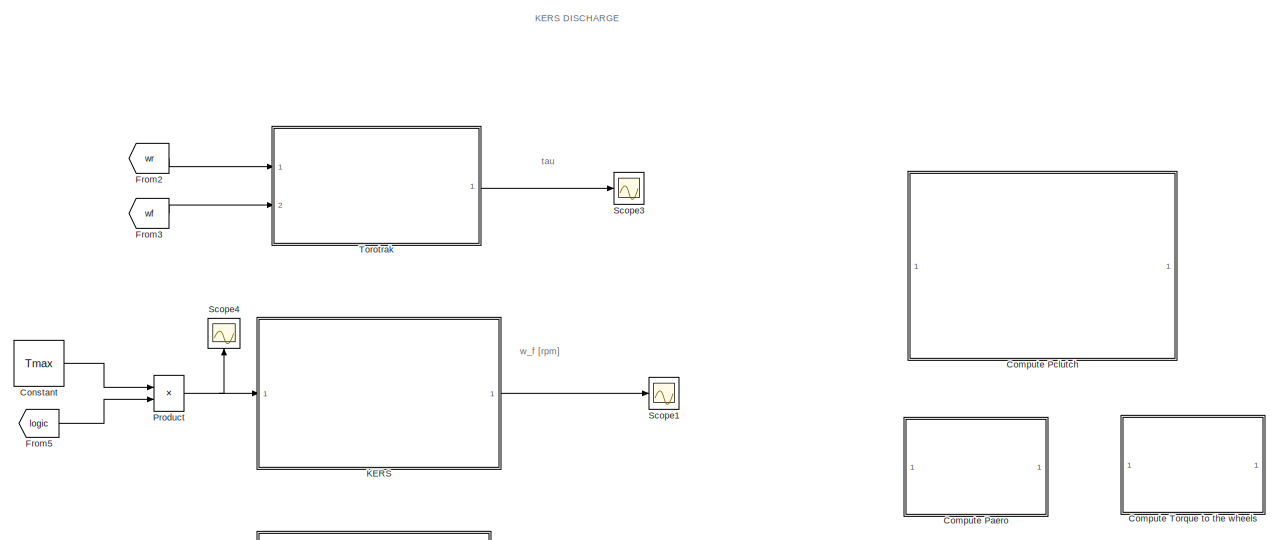
[diagram: root canvas - part 1/3, top right region]
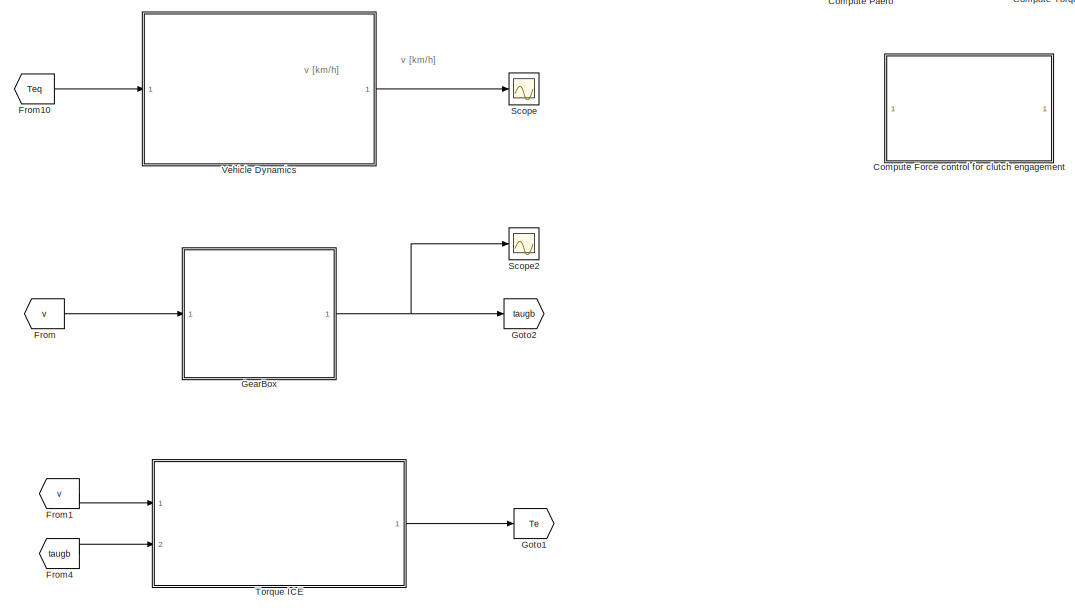
[diagram: root canvas - part 2/3, top right region]
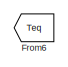
[diagram: root canvas - part 3/3, bottom left region]
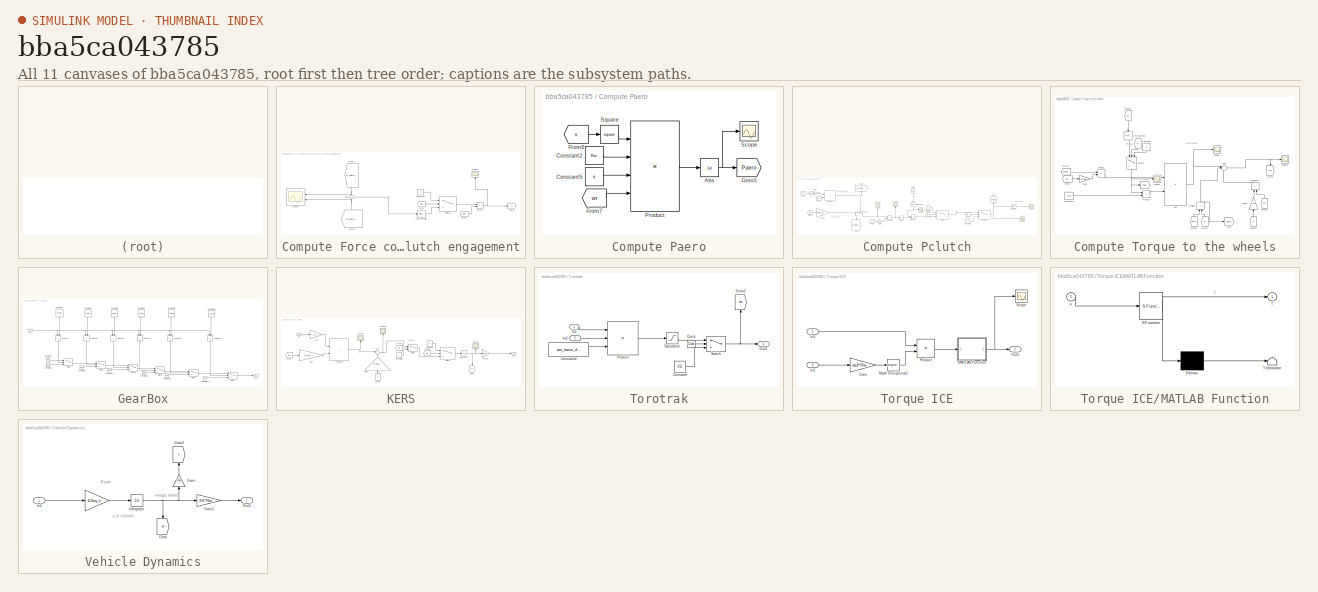
[diagram: thumbnail index - all 11 canvases of the model, root first then tree order]
MODEL slx_bba5ca043785
KIND model
CONFIG AbsTol = auto
CONFIG EnableMultiTasking = off
CONFIG FixedStep = 0.01
CONFIG MaxStep = auto
CONFIG MinStep = auto
CONFIG RelTol = 1e-3
CONFIG SampleTimeConstraint = Unconstrained
CONFIG Solver = ode4
CONFIG SolverName = ode4
CONFIG StartTime = 0.0
CONFIG StopTime = 50
BLOCK [SubSystem] Compute Force control for clutch engagement
  Ports = []
  RequestExecContextInheritance = off
BLOCK [Constant] Compute Force control for clutch engagement/Constant1
  SampleTime = -1
  Value = 0
BLOCK [From] Compute Force control for clutch engagement/From
  GotoTag = tau
  TagVisibility = global
BLOCK [From] Compute Force control for clutch engagement/From1
  GotoTag = w_clutch_kers
  NameLocation = left
  TagVisibility = global
BLOCK [From] Compute Force control for clutch engagement/From2
  GotoTag = logic
  TagVisibility = global
BLOCK [From] Compute Force control for clutch engagement/From5
  GotoTag = w_clutch_wheels
  NameLocation = right
  TagVisibility = global
BLOCK [Goto] Compute Force control for clutch engagement/Goto1
  GotoTag = u
  TagVisibility = global
BLOCK [Reference] Compute Force control for clutch engagement/PID Controller  REF=simulink/Continuous/PID Controller
  Ports = [1, 1]
  SourceBlock = simulink/Continuous/PID Controller
  SourceProductBaseCode = SL
  SourceType = PID 1dof
BLOCK [Product] Compute Force control for clutch engagement/Product
  Ports = [2, 1]
BLOCK [Scope] Compute Force control for clutch engagement/Scope2
  Floating = off
  NameLocation = right
  NumInputPorts = 1
  Ports = [1]
  ScopeSpecificationString = Simulink.scopes.TimeScopeBlockCfg('CurrentConfiguration', extmgr.ConfigurationSet(extmgr.Configuration('Core','General UI',true,'FigureColor',[1 1 1]),extmgr.Configuration('Core','Source UI',true),extmgr.Configuration('Sources','WiredSimulink',true,'DataLoggingVariableName','ScopeData1'),extmgr.Configuration('Visuals','Time Domain',true,'SerializedDisplays',{struct('MinYLimReal','-201.79438','MaxY...<+2513ch>
BLOCK [Scope] Compute Force control for clutch engagement/Scope4
  Floating = off
  NameLocation = top
  NumInputPorts = 2
  Ports = [2]
  ScopeSpecificationString = Simulink.scopes.TimeScopeBlockCfg('CurrentConfiguration', extmgr.ConfigurationSet(extmgr.Configuration('Core','General UI',true,'FigureColor',[1 1 1]),extmgr.Configuration('Core','Source UI',true),extmgr.Configuration('Sources','WiredSimulink',true,'DataLoggingVariableName','ScopeData2'),extmgr.Configuration('Visuals','Time Domain',true,'SerializedDisplays',{struct('MinYLimReal','553.79176','MaxYL...<+2590ch>
BLOCK [Sum] Compute Force control for clutch engagement/Sum
  Inputs = +-
  Ports = [2, 1]
BLOCK [Switch] Compute Force control for clutch engagement/Switch
  Criteria = u2 > Threshold
  InputSameDT = off
  SaturateOnIntegerOverflow = off
  Threshold = tau_min
BLOCK [SubSystem] Compute Paero
  Ports = []
  RequestExecContextInheritance = off
BLOCK [Abs] Compute Paero/Abs
  SaturateOnIntegerOverflow = off
  ZeroCross = off
BLOCK [Constant] Compute Paero/Constant2
  Value = Rw
BLOCK [Constant] Compute Paero/Constant5
  Value = d
BLOCK [From] Compute Paero/From6
  GotoTag = v
  TagVisibility = global
BLOCK [From] Compute Paero/From7
  GotoTag = wr
  TagVisibility = global
BLOCK [Goto] Compute Paero/Goto3
  GotoTag = Paero
  TagVisibility = global
BLOCK [Product] Compute Paero/Product
  Inputs = 4
  Ports = [4, 1]
BLOCK [Scope] Compute Paero/Scope
  Floating = off
  NumInputPorts = 1
  Ports = [1]
  ScopeSpecificationString = Simulink.scopes.TimeScopeBlockCfg('CurrentConfiguration', extmgr.ConfigurationSet(extmgr.Configuration('Core','General UI',true),extmgr.Configuration('Core','Source UI',true),extmgr.Configuration('Sources','WiredSimulink',true,'DataLoggingVariableName','ScopeData4'),extmgr.Configuration('Visuals','Time Domain',true,'SerializedDisplays',{struct('MinYLimReal','-66394.31207','MaxYLimReal','597548.808...<+1423ch>
BLOCK [Math] Compute Paero/Square
  Operator = square
  Ports = [1, 1]
  SignedPower = on
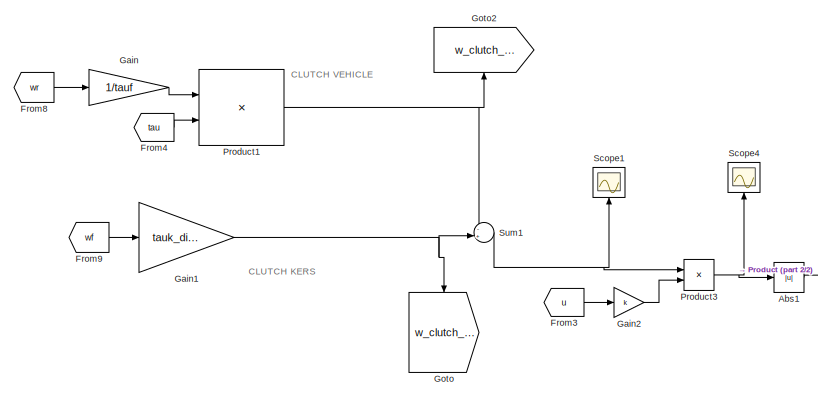
[diagram: Compute Pclutch - part 1/2, left side, full height]
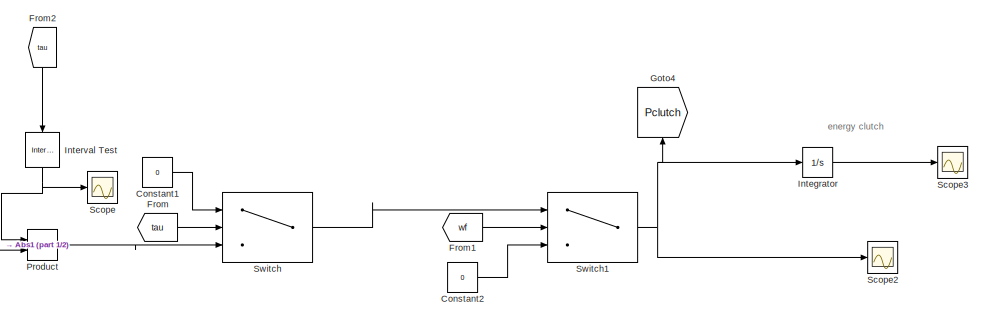
[diagram: Compute Pclutch - part 2/2, right side, full height]
BLOCK [SubSystem] Compute Pclutch
  Ports = []
  RequestExecContextInheritance = off
BLOCK [Abs] Compute Pclutch/Abs1
  SaturateOnIntegerOverflow = off
  ZeroCross = off
BLOCK [Constant] Compute Pclutch/Constant1
  Value = 0
BLOCK [Constant] Compute Pclutch/Constant2
  Value = 0
BLOCK [From] Compute Pclutch/From
  GotoTag = tau
  TagVisibility = global
BLOCK [From] Compute Pclutch/From1
  GotoTag = wf
  TagVisibility = global
BLOCK [From] Compute Pclutch/From2
  GotoTag = tau
  NameLocation = left
  TagVisibility = global
BLOCK [From] Compute Pclutch/From3
  GotoTag = u
  TagVisibility = global
BLOCK [From] Compute Pclutch/From4
  GotoTag = tau
  TagVisibility = global
BLOCK [From] Compute Pclutch/From8
  GotoTag = wr
  TagVisibility = global
BLOCK [From] Compute Pclutch/From9
  GotoTag = wf
  TagVisibility = global
BLOCK [Gain] Compute Pclutch/Gain
  Gain = 1/tauf
BLOCK [Gain] Compute Pclutch/Gain1
  Gain = tauk_discharge
BLOCK [Gain] Compute Pclutch/Gain2
  Gain = k
BLOCK [Goto] Compute Pclutch/Goto
  GotoTag = w_clutch_kers
  NameLocation = left
  TagVisibility = global
BLOCK [Goto] Compute Pclutch/Goto2
  GotoTag = w_clutch_wheels
  NameLocation = right
  TagVisibility = global
BLOCK [Goto] Compute Pclutch/Goto4
  GotoTag = Pclutch
  NameLocation = right
  TagVisibility = global
BLOCK [Integrator] Compute Pclutch/Integrator
  Ports = [1, 1]
BLOCK [Reference] Compute Pclutch/Interval Test  REF=simulink/Logic and Bit
Operations/Interval Test
  NameLocation = left
  Ports = [1, 1]
  SourceBlock = simulink/Logic and Bit\nOperations/Interval Test
  SourceProductBaseCode = SL
  SourceType = Interval Test
BLOCK [Product] Compute Pclutch/Product
  Ports = [2, 1]
BLOCK [Product] Compute Pclutch/Product1
  Inputs = */
  Ports = [2, 1]
BLOCK [Product] Compute Pclutch/Product3
  Ports = [2, 1]
BLOCK [Scope] Compute Pclutch/Scope
  Floating = off
  NumInputPorts = 1
  Ports = [1]
  ScopeSpecificationString = Simulink.scopes.TimeScopeBlockCfg('CurrentConfiguration', extmgr.ConfigurationSet(extmgr.Configuration('Core','General UI',true,'FigureColor',[1 1 1]),extmgr.Configuration('Core','Source UI',true),extmgr.Configuration('Sources','WiredSimulink',true,'DataLoggingVariableName','ScopeData6'),extmgr.Configuration('Visuals','Time Domain',true,'SerializedDisplays',{struct('MinYLimReal','-0.125','MaxYLimR...<+2406ch>
BLOCK [Scope] Compute Pclutch/Scope1
  Floating = off
  NameLocation = right
  NumInputPorts = 1
  Ports = [1]
  ScopeSpecificationString = Simulink.scopes.TimeScopeBlockCfg('CurrentConfiguration', extmgr.ConfigurationSet(extmgr.Configuration('Core','General UI',true),extmgr.Configuration('Core','Source UI',true),extmgr.Configuration('Sources','WiredSimulink',true,'DataLoggingVariableName','ScopeData5'),extmgr.Configuration('Visuals','Time Domain',true,'SerializedDisplays',{struct('MinYLimReal','-129758.73369','MaxYLimReal','15043.000...<+1470ch>
BLOCK [Scope] Compute Pclutch/Scope2
  Floating = off
  NumInputPorts = 1
  Ports = [1]
  ScopeSpecificationString = Simulink.scopes.TimeScopeBlockCfg('CurrentConfiguration', extmgr.ConfigurationSet(extmgr.Configuration('Core','General UI',true),extmgr.Configuration('Core','Source UI',true),extmgr.Configuration('Sources','WiredSimulink',true,'DataLoggingVariableName','ScopeData3'),extmgr.Configuration('Visuals','Time Domain',true,'SerializedDisplays',{struct('MinYLimReal','-8280.13115','MaxYLimReal','74521.18038...<+1463ch>
BLOCK [Scope] Compute Pclutch/Scope3
  Floating = off
  NumInputPorts = 1
  Ports = [1]
  ScopeSpecificationString = Simulink.scopes.TimeScopeBlockCfg('CurrentConfiguration', extmgr.ConfigurationSet(extmgr.Configuration('Core','General UI',true),extmgr.Configuration('Core','Source UI',true),extmgr.Configuration('Sources','WiredSimulink',true,'DataLoggingVariableName','ScopeData6'),extmgr.Configuration('Visuals','Time Domain',true,'SerializedDisplays',{struct('MinYLimReal','-17847.16977','MaxYLimReal','160624.527...<+1430ch>
BLOCK [Scope] Compute Pclutch/Scope4
  Floating = off
  NameLocation = right
  NumInputPorts = 1
  Ports = [1]
  ScopeSpecificationString = Simulink.scopes.TimeScopeBlockCfg('CurrentConfiguration', extmgr.ConfigurationSet(extmgr.Configuration('Core','General UI',true),extmgr.Configuration('Core','Source UI',true),extmgr.Configuration('Sources','WiredSimulink',true,'DataLoggingVariableName','ScopeData7'),extmgr.Configuration('Visuals','Time Domain',true,'SerializedDisplays',{struct('MinYLimReal','-2389313.02554','MaxYLimReal','2473514....<+1484ch>
BLOCK [Sum] Compute Pclutch/Sum1
  Inputs = -+
  Ports = [2, 1]
BLOCK [Switch] Compute Pclutch/Switch
  InputSameDT = off
  SaturateOnIntegerOverflow = off
  Threshold = tau_max
  ZeroCross = off
BLOCK [Switch] Compute Pclutch/Switch1
  Criteria = u2 > Threshold
  InputSameDT = off
  SaturateOnIntegerOverflow = off
  ZeroCross = off
BLOCK [SubSystem] Compute Torque to the wheels
  Ports = []
  RequestExecContextInheritance = off
BLOCK [Sum] Compute Torque to the wheels/Add
  IconShape = rectangular
  Ports = [2, 1]
BLOCK [Constant] Compute Torque to the wheels/Constant
  NameLocation = left
  SampleTime = -1
  Value = 0
BLOCK [Constant] Compute Torque to the wheels/Constant6
  Value = Tmax
BLOCK [Product] Compute Torque to the wheels/Divide
  Inputs = */
  NameLocation = right
  Ports = [2, 1]
BLOCK [Product] Compute Torque to the wheels/Divide1
  Inputs = /*
  Ports = [2, 1]
BLOCK [From] Compute Torque to the wheels/From
  GotoTag = Te
  TagVisibility = global
BLOCK [From] Compute Torque to the wheels/From1
  GotoTag = tau
  NameLocation = left
  TagVisibility = global
BLOCK [From] Compute Torque to the wheels/From2
  GotoTag = taugb
  TagVisibility = global
BLOCK [From] Compute Torque to the wheels/From3
  GotoTag = wf
  NameLocation = left
  TagVisibility = global
BLOCK [From] Compute Torque to the wheels/From4
  GotoTag = u
  NameLocation = right
  TagVisibility = global
BLOCK [From] Compute Torque to the wheels/From5
  GotoTag = tau
  NameLocation = right
  TagVisibility = global
BLOCK [From] Compute Torque to the wheels/From8
  GotoTag = Paero
  NameLocation = right
  TagVisibility = global
BLOCK [From] Compute Torque to the wheels/From9
  GotoTag = wr
  NameLocation = right
  TagVisibility = global
BLOCK [Gain] Compute Torque to the wheels/Gain
  Gain = 1/tauf
BLOCK [Gain] Compute Torque to the wheels/Gain1
  Gain = k/tauf
  NameLocation = right
BLOCK [Goto] Compute Torque to the wheels/Goto
  GotoTag = Taero
  TagVisibility = global
BLOCK [Goto] Compute Torque to the wheels/Goto1
  GotoTag = logic
  TagVisibility = global
BLOCK [Goto] Compute Torque to the wheels/Goto4
  GotoTag = Teq
  NameLocation = left
  TagVisibility = global
BLOCK [Reference] Compute Torque to the wheels/Interval Test  REF=simulink/Logic and Bit
Operations/Interval Test
  NameLocation = left
  Ports = [1, 1]
  SourceBlock = simulink/Logic and Bit\nOperations/Interval Test
  SourceProductBaseCode = SL
  SourceType = Interval Test
BLOCK [Product] Compute Torque to the wheels/Product
  Ports = [2, 1]
BLOCK [Product] Compute Torque to the wheels/Product1
  Inputs = */
  NameLocation = right
  Ports = [2, 1]
BLOCK [Scope] Compute Torque to the wheels/Scope
  Floating = off
  NumInputPorts = 1
  Ports = [1]
  ScopeSpecificationString = Simulink.scopes.TimeScopeBlockCfg('CurrentConfiguration', extmgr.ConfigurationSet(extmgr.Configuration('Core','General UI',true,'FigureColor',[1 1 1]),extmgr.Configuration('Core','Source UI',true),extmgr.Configuration('Sources','WiredSimulink',true,'DataLoggingVariableName','ScopeData2'),extmgr.Configuration('Visuals','Time Domain',true,'SerializedDisplays',{struct('MinYLimReal','-30.00000','MaxYL...<+2464ch>
BLOCK [Scope] Compute Torque to the wheels/Scope1
  Floating = off
  NumInputPorts = 1
  Ports = [1]
  ScopeSpecificationString = Simulink.scopes.TimeScopeBlockCfg('CurrentConfiguration', extmgr.ConfigurationSet(extmgr.Configuration('Core','General UI',true,'FigureColor',[1 1 1]),extmgr.Configuration('Core','Source UI',true),extmgr.Configuration('Sources','WiredSimulink',true,'DataLoggingVariableName','ScopeData4'),extmgr.Configuration('Visuals','Time Domain',true,'SerializedDisplays',{struct('MinYLimReal','-0.125','MaxYLimR...<+2398ch>
BLOCK [Scope] Compute Torque to the wheels/Scope2
  Floating = off
  NumInputPorts = 1
  Ports = [1]
  ScopeSpecificationString = Simulink.scopes.TimeScopeBlockCfg('CurrentConfiguration', extmgr.ConfigurationSet(extmgr.Configuration('Core','General UI',true),extmgr.Configuration('Core','Source UI',true),extmgr.Configuration('Sources','WiredSimulink',true,'DataLoggingVariableName','ScopeData2'),extmgr.Configuration('Visuals','Time Domain',true,'SerializedDisplays',{struct('MinYLimReal','-462.61356','MaxYLimReal','3595.96418',...<+1479ch>
BLOCK [Sum] Compute Torque to the wheels/Sum
  Inputs = |+-+
  Ports = [3, 1]
BLOCK [Switch] Compute Torque to the wheels/Switch
  Criteria = u2 > Threshold
  InputSameDT = off
  NameLocation = left
  SaturateOnIntegerOverflow = off
  Threshold = 0.3*wf_max
BLOCK [Constant] Constant
  SampleTime = -1
  Value = Tmax
BLOCK [From] From
  GotoTag = v
  TagVisibility = global
BLOCK [From] From1
  GotoTag = v
  TagVisibility = global
BLOCK [From] From10
  GotoTag = Teq
  TagVisibility = global
BLOCK [From] From2
  GotoTag = wr
  TagVisibility = global
BLOCK [From] From3
  GotoTag = wf
  TagVisibility = global
BLOCK [From] From4
  GotoTag = taugb
  TagVisibility = global
BLOCK [From] From5
  GotoTag = logic
  TagVisibility = global
BLOCK [From] From6
  Commented = on
  GotoTag = Teq
  TagVisibility = global
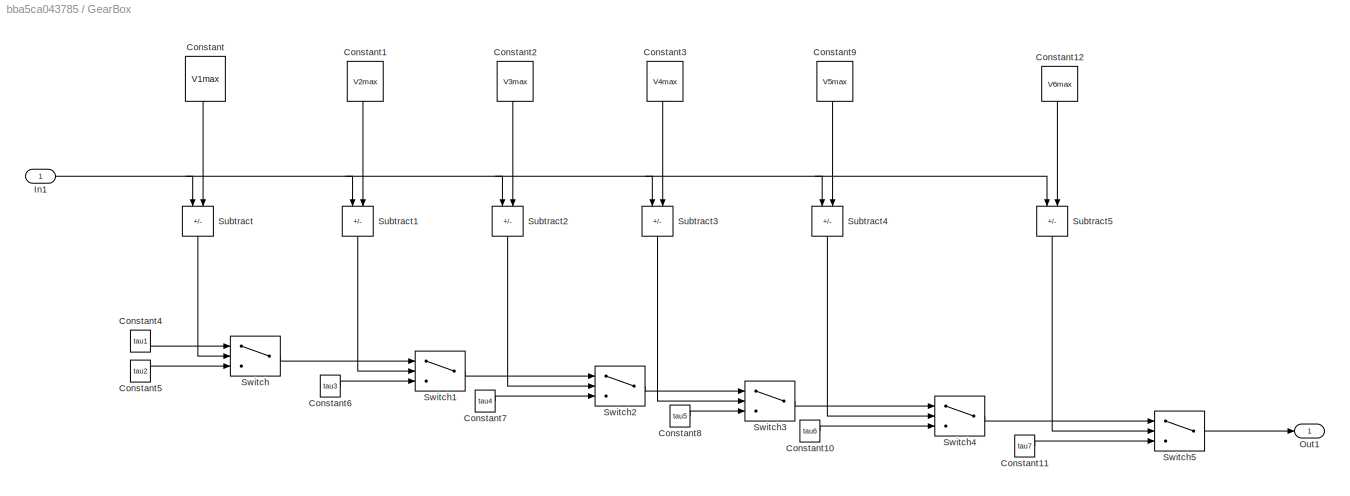
BLOCK [SubSystem] GearBox
  Ports = [1, 1]
  RequestExecContextInheritance = off
BLOCK [Constant] GearBox/Constant
  NameLocation = left
  Value = V1max
BLOCK [Constant] GearBox/Constant1
  NameLocation = left
  Value = V2max
BLOCK [Constant] GearBox/Constant10
  Value = tau6
BLOCK [Constant] GearBox/Constant11
  Value = tau7
BLOCK [Constant] GearBox/Constant12
  NameLocation = left
  Value = V6max
BLOCK [Constant] GearBox/Constant2
  NameLocation = left
  Value = V3max
BLOCK [Constant] GearBox/Constant3
  NameLocation = left
  Value = V4max
BLOCK [Constant] GearBox/Constant4
  Value = tau1
BLOCK [Constant] GearBox/Constant5
  Value = tau2
BLOCK [Constant] GearBox/Constant6
  Value = tau3
BLOCK [Constant] GearBox/Constant7
  Value = tau4
BLOCK [Constant] GearBox/Constant8
  Value = tau5
BLOCK [Constant] GearBox/Constant9
  NameLocation = left
  Value = V5max
BLOCK [Inport] GearBox/In1
BLOCK [Outport] GearBox/Out1
  VectorParamsAs1DForOutWhenUnconnected = off
BLOCK [Sum] GearBox/Subtract
  IconShape = rectangular
  Inputs = -+
  NameLocation = left
  Ports = [2, 1]
BLOCK [Sum] GearBox/Subtract1
  IconShape = rectangular
  Inputs = -+
  NameLocation = left
  Ports = [2, 1]
BLOCK [Sum] GearBox/Subtract2
  IconShape = rectangular
  Inputs = -+
  NameLocation = left
  Ports = [2, 1]
BLOCK [Sum] GearBox/Subtract3
  IconShape = rectangular
  Inputs = -+
  NameLocation = left
  Ports = [2, 1]
BLOCK [Sum] GearBox/Subtract4
  IconShape = rectangular
  Inputs = -+
  NameLocation = left
  Ports = [2, 1]
BLOCK [Sum] GearBox/Subtract5
  IconShape = rectangular
  Inputs = -+
  NameLocation = left
  Ports = [2, 1]
BLOCK [Switch] GearBox/Switch
  Criteria = u2 > Threshold
  InputSameDT = off
  SaturateOnIntegerOverflow = off
BLOCK [Switch] GearBox/Switch1
  Criteria = u2 > Threshold
  InputSameDT = off
  SaturateOnIntegerOverflow = off
BLOCK [Switch] GearBox/Switch2
  Criteria = u2 > Threshold
  InputSameDT = off
  SaturateOnIntegerOverflow = off
BLOCK [Switch] GearBox/Switch3
  Criteria = u2 > Threshold
  InputSameDT = off
  SaturateOnIntegerOverflow = off
BLOCK [Switch] GearBox/Switch4
  Criteria = u2 > Threshold
  InputSameDT = off
  SaturateOnIntegerOverflow = off
BLOCK [Switch] GearBox/Switch5
  Criteria = u2 > Threshold
  InputSameDT = off
  SaturateOnIntegerOverflow = off
BLOCK [Goto] Goto1
  GotoTag = Te
  TagVisibility = global
BLOCK [Goto] Goto2
  GotoTag = taugb
  TagVisibility = global
BLOCK [SubSystem] KERS
  Ports = [1, 1]
  RequestExecContextInheritance = off
BLOCK [Gain] KERS/-1//Jf
  Gain = -1/Jf
BLOCK [Constant] KERS/Constant3
  Value = 0
BLOCK [Constant] KERS/Constant4
  Value = 0
BLOCK [From] KERS/From
  GotoTag = tau
  TagVisibility = global
BLOCK [From] KERS/From1
  GotoTag = u
  NameLocation = right
  TagVisibility = global
BLOCK [From] KERS/From4
  GotoTag = wf
  TagVisibility = global
BLOCK [From] KERS/From5
  GotoTag = tau
  TagVisibility = global
BLOCK [Gain] KERS/Gain
  Gain = 1/tau_trasm_discharge
BLOCK [Gain] KERS/Gain1
  Gain = k*tauk_discharge/Jf
  NameLocation = right
BLOCK [Goto] KERS/Goto1
  GotoTag = wf
  NameLocation = left
  TagVisibility = global
BLOCK [Inport] KERS/In1
BLOCK [Integrator] KERS/Integrator1
  ContinuousStateAttributes = "omega_f"
  InitialCondition = wf_max
  Ports = [1, 1]
BLOCK [Outport] KERS/Out1
BLOCK [Product] KERS/Product1
  Inputs = **
  Ports = [2, 1]
BLOCK [Scope] KERS/Scope
  Floating = off
  NameLocation = right
  NumInputPorts = 1
  Ports = [1]
  ScopeSpecificationString = Simulink.scopes.TimeScopeBlockCfg('CurrentConfiguration', extmgr.ConfigurationSet(extmgr.Configuration('Core','General UI',true),extmgr.Configuration('Core','Source UI',true),extmgr.Configuration('Sources','WiredSimulink',true,'DataLoggingVariableName','ScopeData1'),extmgr.Configuration('Visuals','Time Domain',true,'SerializedDisplays',{struct('MinYLimReal','5506.22632','MaxYLimReal','6892.56008',...<+1463ch>
BLOCK [Scope] KERS/Scope3
  Floating = off
  NameLocation = right
  NumInputPorts = 1
  Ports = [1]
  ScopeSpecificationString = Simulink.scopes.TimeScopeBlockCfg('CurrentConfiguration', extmgr.ConfigurationSet(extmgr.Configuration('Core','General UI',true,'FigureColor',[1 1 1]),extmgr.Configuration('Core','Source UI',true),extmgr.Configuration('Sources','WiredSimulink',true,'DataLoggingVariableName','ScopeData2'),extmgr.Configuration('Visuals','Time Domain',true,'SerializedDisplays',{struct('MinYLimReal','-1333.9655','MaxY...<+2422ch>
BLOCK [Scope] KERS/Scope4
  Floating = off
  NameLocation = right
  NumInputPorts = 1
  Ports = [1]
  ScopeSpecificationString = Simulink.scopes.TimeScopeBlockCfg('CurrentConfiguration', extmgr.ConfigurationSet(extmgr.Configuration('Core','General UI',true,'FigureColor',[1 1 1]),extmgr.Configuration('Core','Source UI',true),extmgr.Configuration('Sources','WiredSimulink',true,'DataLoggingVariableName','ScopeData3'),extmgr.Configuration('Visuals','Time Domain',true,'SerializedDisplays',{struct('MinYLimReal','-1333.9655','MaxY...<+2429ch>
BLOCK [Sum] KERS/Sum
  Inputs = |+-
  Ports = [2, 1]
BLOCK [Switch] KERS/Switch
  Criteria = u2 > Threshold
  InputSameDT = off
  SaturateOnIntegerOverflow = off
  Threshold = 0.3*wf_max
BLOCK [Switch] KERS/Switch1
  InputSameDT = off
  SaturateOnIntegerOverflow = off
  Threshold = tau_max
BLOCK [Gain] KERS/To rpm
  Gain = 9.55
BLOCK [Product] Product
  Ports = [2, 1]
BLOCK [Scope] Scope
  Floating = off
  NumInputPorts = 1
  Ports = [1]
  ScopeSpecificationString = Simulink.scopes.TimeScopeBlockCfg('CurrentConfiguration', extmgr.ConfigurationSet(extmgr.Configuration('Core','General UI',true,'FigureColor',[1 1 1]),extmgr.Configuration('Core','Source UI',true),extmgr.Configuration('Sources','WiredSimulink',true),extmgr.Configuration('Visuals','Time Domain',true,'SerializedDisplays',{struct('MinYLimReal','-41.20695','MaxYLimReal','370.86254','YLabelReal','v [km...<+1638ch>
BLOCK [Scope] Scope1
  Floating = off
  NumInputPorts = 1
  Ports = [1]
  ScopeSpecificationString = Simulink.scopes.TimeScopeBlockCfg('CurrentConfiguration', extmgr.ConfigurationSet(extmgr.Configuration('Core','General UI',true,'FigureColor',[1 1 1]),extmgr.Configuration('Core','Source UI',true),extmgr.Configuration('Sources','WiredSimulink',true,'DataLoggingVariableName','ScopeData1'),extmgr.Configuration('Visuals','Time Domain',true,'SerializedDisplays',{struct('MinYLimReal','12303.70244','Max...<+1762ch>
BLOCK [Scope] Scope2
  Floating = off
  NumInputPorts = 1
  Ports = [1]
  ScopeSpecificationString = Simulink.scopes.TimeScopeBlockCfg('CurrentConfiguration', extmgr.ConfigurationSet(extmgr.Configuration('Core','General UI',true,'FigureColor',[1 1 1]),extmgr.Configuration('Core','Source UI',true),extmgr.Configuration('Sources','WiredSimulink',true,'DataLoggingVariableName','ScopeData2'),extmgr.Configuration('Visuals','Time Domain',true,'SerializedDisplays',{struct('MinYLimReal','0.1841','MaxYLimR...<+1673ch>
BLOCK [Scope] Scope3
  Floating = off
  NumInputPorts = 1
  Ports = [1]
  ScopeSpecificationString = Simulink.scopes.TimeScopeBlockCfg('CurrentConfiguration', extmgr.ConfigurationSet(extmgr.Configuration('Core','General UI',true,'FigureColor',[1 1 1]),extmgr.Configuration('Core','Source UI',true),extmgr.Configuration('Sources','WiredSimulink',true,'DataLoggingVariableName','ScopeData1'),extmgr.Configuration('Visuals','Time Domain',true,'SerializedDisplays',{struct('MinYLimReal','-0.07202','MaxYLi...<+1673ch>
BLOCK [Scope] Scope4
  Floating = off
  NameLocation = right
  NumInputPorts = 1
  Ports = [1]
  ScopeSpecificationString = Simulink.scopes.TimeScopeBlockCfg('CurrentConfiguration', extmgr.ConfigurationSet(extmgr.Configuration('Core','General UI',true,'FigureColor',[1 1 1]),extmgr.Configuration('Core','Source UI',true),extmgr.Configuration('Sources','WiredSimulink',true,'DataLoggingVariableName','ScopeData5'),extmgr.Configuration('Visuals','Time Domain',true,'SerializedDisplays',{struct('MinYLimReal','-30.00000','MaxYL...<+2422ch>
BLOCK [SubSystem] Torotrak
  Ports = [2, 1]
  RequestExecContextInheritance = off
BLOCK [Clock] Torotrak/Clock
BLOCK [Constant] Torotrak/Constant
  SampleTime = -1
  Value = 0.01
BLOCK [Constant] Torotrak/Constant2
  Value = tau_trasm_discharge
BLOCK [Goto] Torotrak/Goto2
  GotoTag = tau
  NameLocation = right
  TagVisibility = global
BLOCK [Inport] Torotrak/In1
BLOCK [Inport] Torotrak/In2
  Port = 2
BLOCK [Outport] Torotrak/Out1
BLOCK [Product] Torotrak/Product
  Inputs = */*
  Ports = [3, 1]
BLOCK [Saturate] Torotrak/Saturation
  LowerLimit = tau_min
  UpperLimit = tau_max
  ZeroCross = off
BLOCK [Switch] Torotrak/Switch
  Criteria = u2 > Threshold
  InputSameDT = off
  SaturateOnIntegerOverflow = off
  Threshold = 30
  ZeroCross = off
BLOCK [SubSystem] Torque ICE
  Ports = [2, 1]
  RequestExecContextInheritance = off
BLOCK [Gain] Torque ICE/Gain
  Gain = tauf*Rw
BLOCK [Inport] Torque ICE/In1
BLOCK [Inport] Torque ICE/In2
  Port = 2
BLOCK [SubSystem] Torque ICE/MATLAB Function
  ErrorFcn = Stateflow.Translate.translate
  PermitHierarchicalResolution = ExplicitOnly
  Ports = [1, 1]
  RequestExecContextInheritance = off
  SFBlockType = MATLAB Function
  TreatAsAtomicUnit = on
BLOCK [Demux] Torque ICE/MATLAB Function/ Demux 
  Outputs = 1
  Ports = [1, 1]
BLOCK [S-Function] Torque ICE/MATLAB Function/ SFunction 
  EnableBusSupport = on
  FunctionName = sf_sfun
  PortCounts = [1 2]
  Ports = [1, 2]
  SFcnIsStateOwnerBlock = off
  SFunctionDeploymentMode = off
  Tag = Stateflow S-Function 1
BLOCK [Terminator] Torque ICE/MATLAB Function/ Terminator 
BLOCK [Outport] Torque ICE/MATLAB Function/T
  VectorParamsAs1DForOutWhenUnconnected = off
BLOCK [Inport] Torque ICE/MATLAB Function/u
BLOCK [Math] Torque ICE/Math Reciprocal1
  Operator = reciprocal
  Ports = [1, 1]
  SignedPower = on
BLOCK [Outport] Torque ICE/Out1
  VectorParamsAs1DForOutWhenUnconnected = off
BLOCK [Product] Torque ICE/Product
  Ports = [2, 1]
BLOCK [Scope] Torque ICE/Scope
  Floating = off
  NumInputPorts = 1
  Ports = [1]
  ScopeSpecificationString = Simulink.scopes.TimeScopeBlockCfg('CurrentConfiguration', extmgr.ConfigurationSet(extmgr.Configuration('Core','General UI',true),extmgr.Configuration('Core','Source UI',true),extmgr.Configuration('Sources','WiredSimulink',true,'DataLoggingVariableName','ScopeData1'),extmgr.Configuration('Visuals','Time Domain',true,'SerializedDisplays',{struct('MinYLimReal','14.16448','MaxYLimReal','757.31984','YL...<+1384ch>
BLOCK [SubSystem] Vehicle Dynamics
  Ports = [1, 1]
  RequestExecContextInheritance = off
BLOCK [Gain] Vehicle Dynamics/ 
  Gain = 1/Jeq_v
BLOCK [Gain] Vehicle Dynamics/Gain
  Gain = Rw
  NameLocation = right
BLOCK [Gain] Vehicle Dynamics/Gain1
  Gain = 3.6*Rw
BLOCK [Goto] Vehicle Dynamics/Goto
  GotoTag = wr
  NameLocation = left
  TagVisibility = global
BLOCK [Goto] Vehicle Dynamics/Goto2
  GotoTag = v
  NameLocation = right
  TagVisibility = global
BLOCK [Inport] Vehicle Dynamics/In1
BLOCK [Integrator] Vehicle Dynamics/Integrator
  ContinuousStateAttributes = "omega_w"
  InitialCondition = 0.0000001/(3.6*Rw)
  NameLocation = top
  Ports = [1, 1]
BLOCK [Outport] Vehicle Dynamics/Out1
ANNOTATION (root): KERS DISCHARGE
ANNOTATION (root): tau
ANNOTATION (root): v [km/h]
ANNOTATION (root): w_f [rpm]
ANNOTATION Compute Pclutch: CLUTCH KERS
ANNOTATION Compute Pclutch: CLUTCH VEHICLE
ANNOTATION Compute Pclutch: energy clutch
ANNOTATION Compute Torque to the wheels: total torque
ANNOTATION KERS: Flywheel
ANNOTATION Vehicle Dynamics: v_0 = 0 km/h
ANNOTATION Vehicle Dynamics: Ruote
ANNOTATION Vehicle Dynamics: omega_wheel
LINE Compute Force control for clutch engagement/Constant1:1 -> Compute Force control for clutch engagement/Switch:1
NET Compute Force control for clutch engagement/From1:1 -> Compute Force control for clutch engagement/Scope4:1, Compute Force control for clutch engagement/Sum:1
LINE Compute Force control for clutch engagement/From2:1 -> Compute Force control for clutch engagement/Product:2
NET Compute Force control for clutch engagement/From5:1 -> Compute Force control for clutch engagement/Scope4:2, Compute Force control for clutch engagement/Sum:2
LINE Compute Force control for clutch engagement/From:1 -> Compute Force control for clutch engagement/Switch:2
LINE Compute Force control for clutch engagement/PID Controller:1 -> Compute Force control for clutch engagement/Switch:3
NET Compute Force control for clutch engagement/Product:1 -> Compute Force control for clutch engagement/Goto1:1, Compute Force control for clutch engagement/Scope2:1
LINE Compute Force control for clutch engagement/Sum:1 -> Compute Force control for clutch engagement/PID Controller:1
LINE Compute Force control for clutch engagement/Switch:1 -> Compute Force control for clutch engagement/Product:1
NET Compute Paero/Abs:1 -> Compute Paero/Goto3:1, Compute Paero/Scope:1
LINE Compute Paero/Constant2:1 -> Compute Paero/Product:2
LINE Compute Paero/Constant5:1 -> Compute Paero/Product:3
LINE Compute Paero/From6:1 -> Compute Paero/Square:1
LINE Compute Paero/From7:1 -> Compute Paero/Product:4
LINE Compute Paero/Product:1 -> Compute Paero/Abs:1
LINE Compute Paero/Square:1 -> Compute Paero/Product:1
LINE Compute Pclutch/Abs1:1 -> Compute Pclutch/Product:2
LINE Compute Pclutch/Constant1:1 -> Compute Pclutch/Switch:1
LINE Compute Pclutch/Constant2:1 -> Compute Pclutch/Switch1:3
LINE Compute Pclutch/From1:1 -> Compute Pclutch/Switch1:2
LINE Compute Pclutch/From2:1 -> Compute Pclutch/Interval Test:1
LINE Compute Pclutch/From3:1 -> Compute Pclutch/Gain2:1
LINE Compute Pclutch/From4:1 -> Compute Pclutch/Product1:2
LINE Compute Pclutch/From8:1 -> Compute Pclutch/Gain:1
LINE Compute Pclutch/From9:1 -> Compute Pclutch/Gain1:1
LINE Compute Pclutch/From:1 -> Compute Pclutch/Switch:2
NET Compute Pclutch/Gain1:1 -> Compute Pclutch/Goto:1, Compute Pclutch/Sum1:2
LINE Compute Pclutch/Gain2:1 -> Compute Pclutch/Product3:2
LINE Compute Pclutch/Gain:1 -> Compute Pclutch/Product1:1
LINE Compute Pclutch/Integrator:1 -> Compute Pclutch/Scope3:1
NET Compute Pclutch/Interval Test:1 -> Compute Pclutch/Product:1, Compute Pclutch/Scope:1
NET Compute Pclutch/Product1:1 -> Compute Pclutch/Goto2:1, Compute Pclutch/Sum1:1
NET Compute Pclutch/Product3:1 -> Compute Pclutch/Abs1:1, Compute Pclutch/Scope4:1
LINE Compute Pclutch/Product:1 -> Compute Pclutch/Switch:3
NET Compute Pclutch/Sum1:1 -> Compute Pclutch/Product3:1, Compute Pclutch/Scope1:1
NET Compute Pclutch/Switch1:1 -> Compute Pclutch/Goto4:1, Compute Pclutch/Integrator:1, Compute Pclutch/Scope2:1
LINE Compute Pclutch/Switch:1 -> Compute Pclutch/Switch1:1
NET Compute Torque to the wheels/Add:1 -> Compute Torque to the wheels/Scope:1, Compute Torque to the wheels/Sum:1
LINE Compute Torque to the wheels/Constant6:1 -> Compute Torque to the wheels/Product:2
LINE Compute Torque to the wheels/Constant:1 -> Compute Torque to the wheels/Switch:3
LINE Compute Torque to the wheels/Divide1:1 -> Compute Torque to the wheels/Add:1
NET Compute Torque to the wheels/Divide:1 -> Compute Torque to the wheels/Goto:1, Compute Torque to the wheels/Sum:2
LINE Compute Torque to the wheels/From1:1 -> Compute Torque to the wheels/Interval Test:1
LINE Compute Torque to the wheels/From2:1 -> Compute Torque to the wheels/Divide1:1
LINE Compute Torque to the wheels/From3:1 -> Compute Torque to the wheels/Switch:2
LINE Compute Torque to the wheels/From4:1 -> Compute Torque to the wheels/Gain1:1
LINE Compute Torque to the wheels/From5:1 -> Compute Torque to the wheels/Product1:2
LINE Compute Torque to the wheels/From8:1 -> Compute Torque to the wheels/Divide:1
LINE Compute Torque to the wheels/From9:1 -> Compute Torque to the wheels/Divide:2
LINE Compute Torque to the wheels/From:1 -> Compute Torque to the wheels/Gain:1
LINE Compute Torque to the wheels/Gain1:1 -> Compute Torque to the wheels/Product1:1
LINE Compute Torque to the wheels/Gain:1 -> Compute Torque to the wheels/Divide1:2
LINE Compute Torque to the wheels/Interval Test:1 -> Compute Torque to the wheels/Switch:1
LINE Compute Torque to the wheels/Product1:1 -> Compute Torque to the wheels/Sum:3
LINE Compute Torque to the wheels/Product:1 -> Compute Torque to the wheels/Add:2
NET Compute Torque to the wheels/Sum:1 -> Compute Torque to the wheels/Goto4:1, Compute Torque to the wheels/Scope2:1
NET Compute Torque to the wheels/Switch:1 -> Compute Torque to the wheels/Goto1:1, Compute Torque to the wheels/Product:1, Compute Torque to the wheels/Scope1:1
LINE Constant:1 -> Product:1
LINE From10:1 -> Vehicle Dynamics:1
LINE From1:1 -> Torque ICE:1
LINE From2:1 -> Torotrak:1
LINE From3:1 -> Torotrak:2
LINE From4:1 -> Torque ICE:2
LINE From5:1 -> Product:2
LINE From:1 -> GearBox:1
LINE GearBox/Constant10:1 -> GearBox/Switch4:3
LINE GearBox/Constant11:1 -> GearBox/Switch5:3
LINE GearBox/Constant12:1 -> GearBox/Subtract5:2
LINE GearBox/Constant1:1 -> GearBox/Subtract1:2
LINE GearBox/Constant2:1 -> GearBox/Subtract2:2
LINE GearBox/Constant3:1 -> GearBox/Subtract3:2
LINE GearBox/Constant4:1 -> GearBox/Switch:1
LINE GearBox/Constant5:1 -> GearBox/Switch:3
LINE GearBox/Constant6:1 -> GearBox/Switch1:3
LINE GearBox/Constant7:1 -> GearBox/Switch2:3
LINE GearBox/Constant8:1 -> GearBox/Switch3:3
LINE GearBox/Constant9:1 -> GearBox/Subtract4:2
LINE GearBox/Constant:1 -> GearBox/Subtract:2
NET GearBox/In1:1 -> GearBox/Subtract1:1, GearBox/Subtract2:1, GearBox/Subtract3:1, GearBox/Subtract4:1, GearBox/Subtract5:1, GearBox/Subtract:1
LINE GearBox/Subtract1:1 -> GearBox/Switch1:2
LINE GearBox/Subtract2:1 -> GearBox/Switch2:2
LINE GearBox/Subtract3:1 -> GearBox/Switch3:2
LINE GearBox/Subtract4:1 -> GearBox/Switch4:2
LINE GearBox/Subtract5:1 -> GearBox/Switch5:2
LINE GearBox/Subtract:1 -> GearBox/Switch:2
LINE GearBox/Switch1:1 -> GearBox/Switch2:1
LINE GearBox/Switch2:1 -> GearBox/Switch3:1
LINE GearBox/Switch3:1 -> GearBox/Switch4:1
LINE GearBox/Switch4:1 -> GearBox/Switch5:1
LINE GearBox/Switch5:1 -> GearBox/Out1:1
LINE GearBox/Switch:1 -> GearBox/Switch1:1
NET GearBox:1 -> Goto2:1, Scope2:1
LINE KERS/-1//Jf:1 -> KERS/Product1:1
LINE KERS/Constant3:1 -> KERS/Switch:3
LINE KERS/Constant4:1 -> KERS/Switch1:1
LINE KERS/From1:1 -> KERS/Gain1:1
LINE KERS/From4:1 -> KERS/Switch:2
LINE KERS/From5:1 -> KERS/Switch1:2
LINE KERS/From:1 -> KERS/Gain:1
LINE KERS/Gain1:1 -> KERS/Sum:2
LINE KERS/Gain:1 -> KERS/Product1:2
LINE KERS/In1:1 -> KERS/-1//Jf:1
NET KERS/Integrator1:1 -> KERS/Goto1:1, KERS/Scope:1, KERS/To rpm:1
NET KERS/Product1:1 -> KERS/Scope4:1, KERS/Sum:1
NET KERS/Sum:1 -> KERS/Scope3:1, KERS/Switch:1
LINE KERS/Switch1:1 -> KERS/Integrator1:1
LINE KERS/Switch:1 -> KERS/Switch1:3
LINE KERS/To rpm:1 -> KERS/Out1:1
LINE KERS:1 -> Scope1:1
NET Product:1 -> KERS:1, Scope4:1
LINE Torotrak/Clock:1 -> Torotrak/Switch:2
LINE Torotrak/Constant2:1 -> Torotrak/Product:3
LINE Torotrak/Constant:1 -> Torotrak/Switch:3
LINE Torotrak/In1:1 -> Torotrak/Product:1
LINE Torotrak/In2:1 -> Torotrak/Product:2
LINE Torotrak/Product:1 -> Torotrak/Saturation:1
LINE Torotrak/Saturation:1 -> Torotrak/Switch:1
NET Torotrak/Switch:1 -> Torotrak/Goto2:1, Torotrak/Out1:1
LINE Torotrak:1 -> Scope3:1
LINE Torque ICE/Gain:1 -> Torque ICE/Math Reciprocal1:1
LINE Torque ICE/In1:1 -> Torque ICE/Product:1
LINE Torque ICE/In2:1 -> Torque ICE/Gain:1
NET Torque ICE/MATLAB Function:1 -> Torque ICE/Out1:1, Torque ICE/Scope:1
LINE Torque ICE/Math Reciprocal1:1 -> Torque ICE/Product:2
LINE Torque ICE/Product:1 -> Torque ICE/MATLAB Function:1
LINE Torque ICE:1 -> Goto1:1
LINE Vehicle Dynamics/ :1 -> Vehicle Dynamics/Integrator:1
LINE Vehicle Dynamics/Gain1:1 -> Vehicle Dynamics/Out1:1
LINE Vehicle Dynamics/Gain:1 -> Vehicle Dynamics/Goto2:1
LINE Vehicle Dynamics/In1:1 -> Vehicle Dynamics/ :1
NET Vehicle Dynamics/Integrator:1 -> Vehicle Dynamics/Gain1:1, Vehicle Dynamics/Gain:1, Vehicle Dynamics/Goto:1
LINE Vehicle Dynamics:1 -> Scope:1
note: NET lines group one-source signal fan-out (src -> all destinations, sorted); 1:1 wires keep LINE
CHART Torque ICE/MATLAB Function states=1 transitions=1
  STATE_LABEL 'eML_blk_kernel()'
  STATE_LABEL 'SCRIPT:\nfunction T = TorqueICE(u)\n\na0 = 88.48;\na1 = 1.41;\na2 = -8.36e-4;\n\nT = a0+a1*u+a2*(u^2);\n\n'
CHART  states=0 transitions=0
